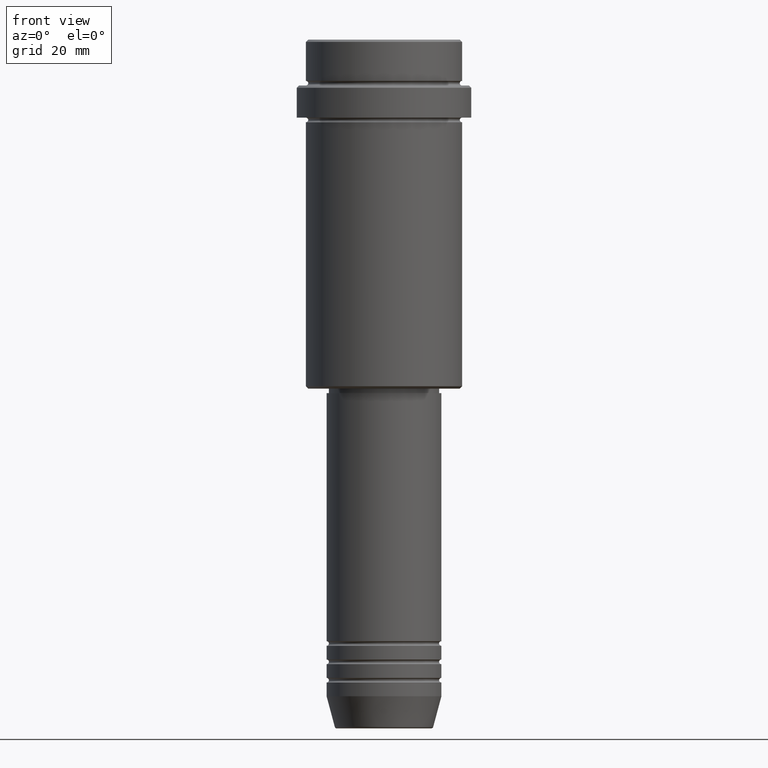
[diagram: clean part render]
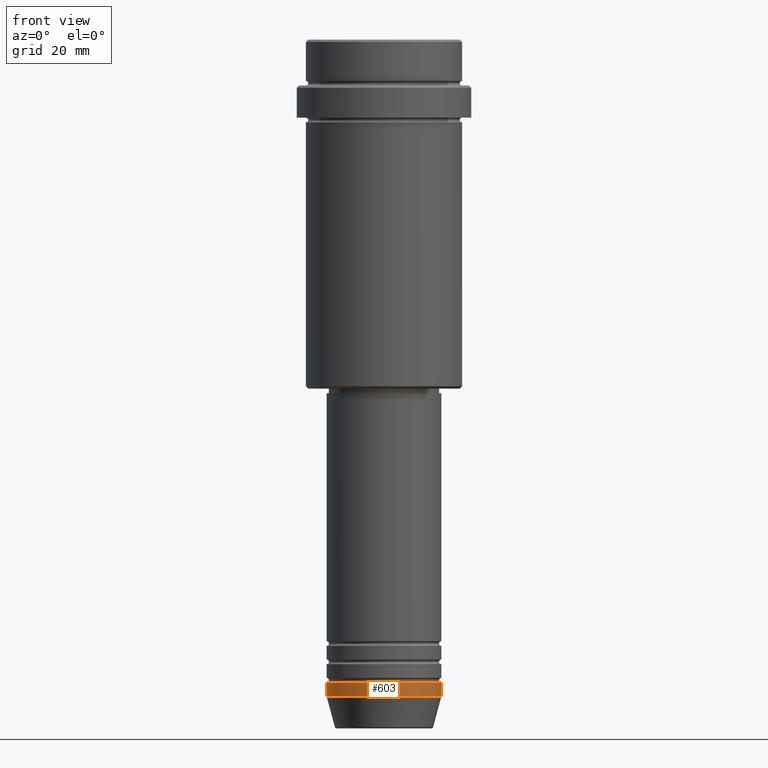
[diagram: same view with one face highlighted and labeled with its STEP entity id]
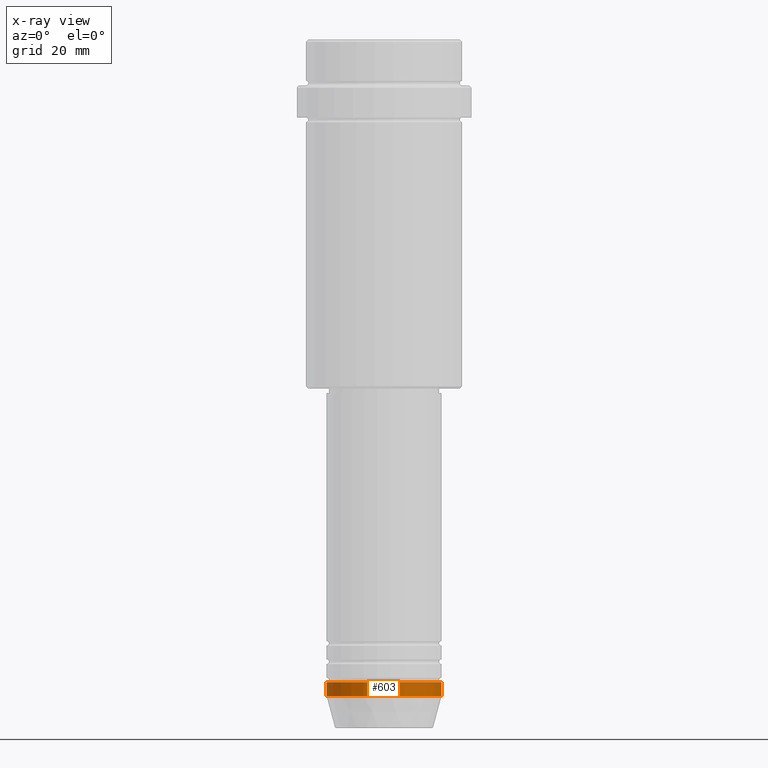
[diagram: x-ray of the same camera — body ghosted, the highlighted face saturated]
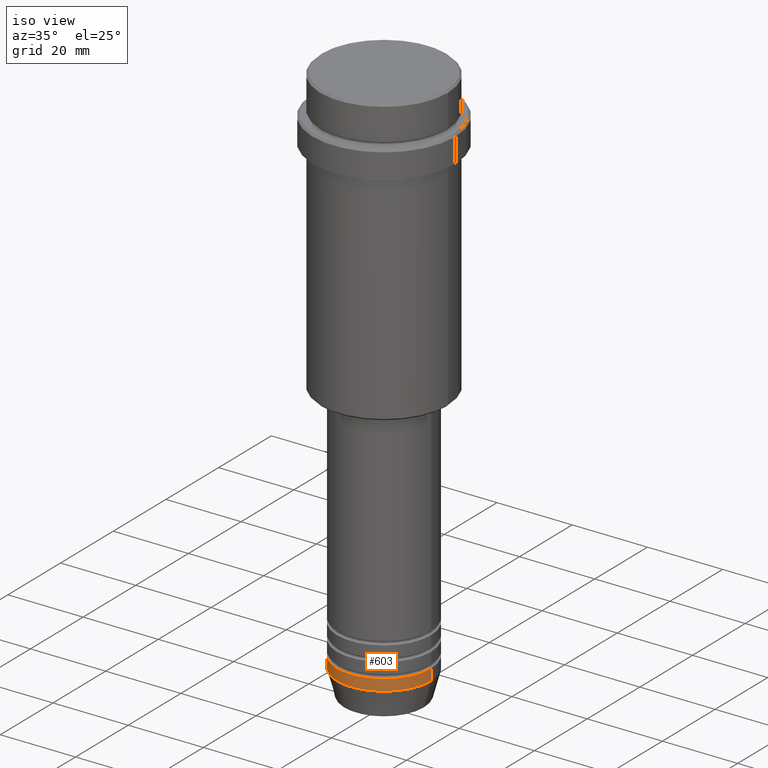
[diagram: same view with one face highlighted and labeled with its STEP entity id]
A machine part, front view. The second image highlights one B-rep face of the part: STEP entity #603.
The next image is the same camera in x-ray: the body ghosted, the highlighted face saturated — about 0% of this face is hidden behind the body in this view.
A second angle (iso view) of the same face is appended — the face is thin or edge-on in the first view.
In plain terms, the highlighted cylindrical surface (partial cylindrical patch) has radius 12.5 mm, axis along (-0, -0, 1).
Its self-contained STEP definition (entity closure, byte-faithful):
#22 = ORIENTED_EDGE ( 'NONE', *, *, #1121, .F. ) ;
#51 = AXIS2_PLACEMENT_3D ( 'NONE', #1126, #262, #712 ) ;
#85 = VERTEX_POINT ( 'NONE', #481 ) ;
#158 = AXIS2_PLACEMENT_3D ( 'NONE', #219, #536, #496 ) ;
#179 = CIRCLE ( 'NONE', #51, 12.50000000000000000 ) ;
#219 = CARTESIAN_POINT ( 'NONE',  ( 0.000000000000000000, 0.000000000000000000, -140.0000000000000000 ) ) ;
#262 = DIRECTION ( 'NONE',  ( -0.000000000000000000, -0.000000000000000000, 1.000000000000000000 ) ) ;
#293 = VECTOR ( 'NONE', #1080, 1000.000000000000000 ) ;
#295 = CIRCLE ( 'NONE', #158, 12.50000000000000000 ) ;
#300 = CARTESIAN_POINT ( 'NONE',  ( 12.50000000000000000, 0.000000000000000000, 0.000000000000000000 ) ) ;
#327 = CARTESIAN_POINT ( 'NONE',  ( -12.50000000000000000, 1.530808498934191521E-15, 0.000000000000000000 ) ) ;
#417 = CARTESIAN_POINT ( 'NONE',  ( -12.50000000000000000, 1.530808498934191521E-15, -140.0000000000000000 ) ) ;
#459 = ORIENTED_EDGE ( 'NONE', *, *, #879, .T. ) ;
#463 = DIRECTION ( 'NONE',  ( -0.000000000000000000, -0.000000000000000000, 1.000000000000000000 ) ) ;
#477 = FACE_OUTER_BOUND ( 'NONE', #802, .T. ) ;
#481 = CARTESIAN_POINT ( 'NONE',  ( 12.50000000000000000, 0.000000000000000000, -143.0000000000000284 ) ) ;
#496 = DIRECTION ( 'NONE',  ( 1.000000000000000000, 0.000000000000000000, 0.000000000000000000 ) ) ;
#536 = DIRECTION ( 'NONE',  ( -0.000000000000000000, -0.000000000000000000, 1.000000000000000000 ) ) ;
#555 = LINE ( 'NONE', #327, #293 ) ;
#603 = ADVANCED_FACE ( 'NONE', ( #477 ), #1350, .T. ) ;
#712 = DIRECTION ( 'NONE',  ( 1.000000000000000000, 0.000000000000000000, 0.000000000000000000 ) ) ;
#779 = CARTESIAN_POINT ( 'NONE',  ( 0.000000000000000000, 0.000000000000000000, 0.000000000000000000 ) ) ;
#791 = DIRECTION ( 'NONE',  ( 1.000000000000000000, 0.000000000000000000, 0.000000000000000000 ) ) ;
#802 = EDGE_LOOP ( 'NONE', ( #22, #459, #942, #1203 ) ) ;
#803 = CARTESIAN_POINT ( 'NONE',  ( -12.50000000000000000, 1.530808498934191521E-15, -143.0000000000000284 ) ) ;
#819 = VERTEX_POINT ( 'NONE', #1193 ) ;
#837 = VERTEX_POINT ( 'NONE', #803 ) ;
#879 = EDGE_CURVE ( 'NONE', #837, #85, #179, .T. ) ;
#942 = ORIENTED_EDGE ( 'NONE', *, *, #978, .T. ) ;
#962 = LINE ( 'NONE', #300, #1155 ) ;
#978 = EDGE_CURVE ( 'NONE', #85, #819, #962, .T. ) ;
#1054 = DIRECTION ( 'NONE',  ( -0.000000000000000000, -0.000000000000000000, 1.000000000000000000 ) ) ;
#1080 = DIRECTION ( 'NONE',  ( -0.000000000000000000, -0.000000000000000000, 1.000000000000000000 ) ) ;
#1121 = EDGE_CURVE ( 'NONE', #837, #1389, #555, .T. ) ;
#1126 = CARTESIAN_POINT ( 'NONE',  ( 0.000000000000000000, 0.000000000000000000, -143.0000000000000284 ) ) ;
#1155 = VECTOR ( 'NONE', #1054, 1000.000000000000000 ) ;
#1193 = CARTESIAN_POINT ( 'NONE',  ( 12.50000000000000000, 0.000000000000000000, -140.0000000000000000 ) ) ;
#1203 = ORIENTED_EDGE ( 'NONE', *, *, #1358, .F. ) ;
#1207 = AXIS2_PLACEMENT_3D ( 'NONE', #779, #463, #791 ) ;
#1350 = CYLINDRICAL_SURFACE ( 'NONE', #1207, 12.50000000000000000 ) ;
#1358 = EDGE_CURVE ( 'NONE', #1389, #819, #295, .T. ) ;
#1389 = VERTEX_POINT ( 'NONE', #417 ) ;